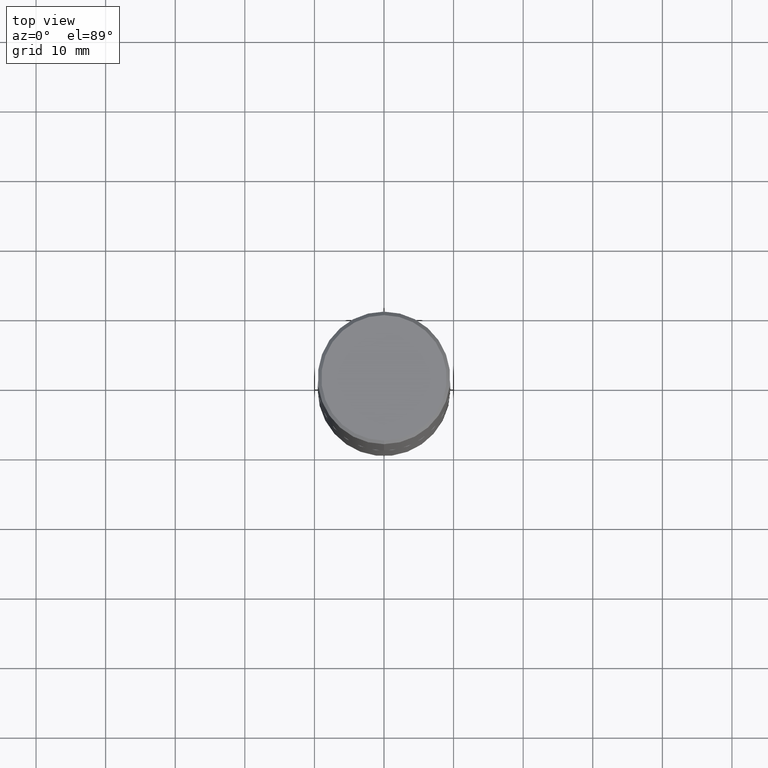
[diagram: clean part render]
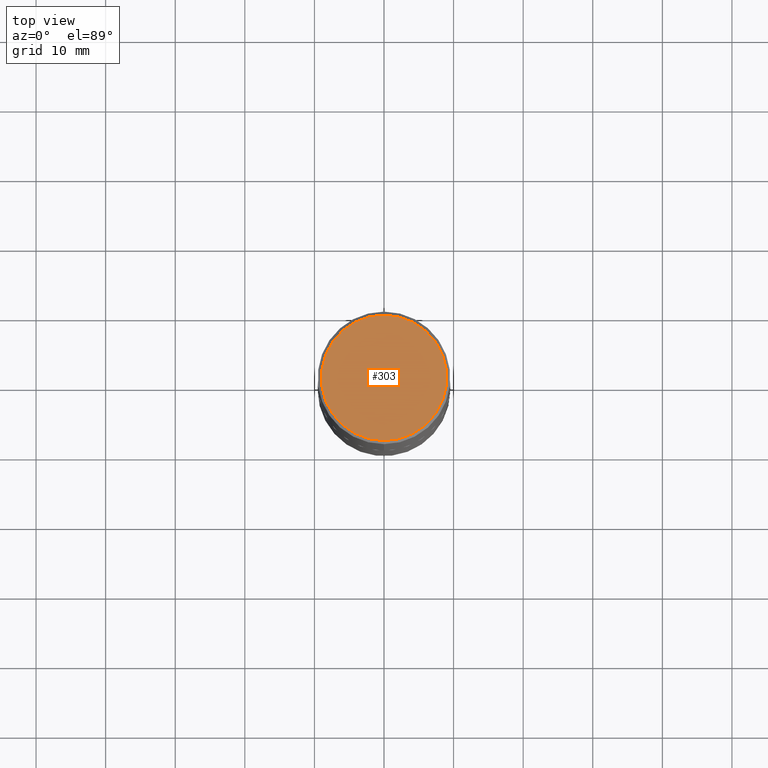
[diagram: same view with one face highlighted and labeled with its STEP entity id]
A machine part, top view. The second image highlights one B-rep face of the part: STEP entity #303.
In plain terms, the highlighted planar face has unit normal (0, -0, -1).
Its self-contained STEP definition (entity closure, byte-faithful):
#22 = DIRECTION ( 'NONE',  ( -2.444599841513017620E-29, 3.492725745712017802E-15, 1.000000000000000000 ) ) ;
#65 = VERTEX_POINT ( 'NONE', #109 ) ;
#80 = DIRECTION ( 'NONE',  ( -6.982962677686265922E-15, -1.000000000000000000, 3.492725745712017407E-15 ) ) ;
#100 = DIRECTION ( 'NONE',  ( -6.982962677686265922E-15, -1.000000000000000000, 3.492725745712017407E-15 ) ) ;
#101 = PLANE ( 'NONE',  #383 ) ;
#109 = CARTESIAN_POINT ( 'NONE',  ( 2.548781377355487507E-15, 0.3549999999999999822, -1.175448187937810043E-15 ) ) ;
#122 = EDGE_LOOP ( 'NONE', ( #232, #257 ) ) ;
#134 = FACE_OUTER_BOUND ( 'NONE', #122, .T. ) ;
#140 = DIRECTION ( 'NONE',  ( 2.444599841513016780E-29, -3.492725745712018196E-15, -1.000000000000000000 ) ) ;
#187 = AXIS2_PLACEMENT_3D ( 'NONE', #241, #336, #80 ) ;
#219 = CIRCLE ( 'NONE', #259, 0.3549999999999999822 ) ;
#232 = ORIENTED_EDGE ( 'NONE', *, *, #287, .T. ) ;
#241 = CARTESIAN_POINT ( 'NONE',  ( -1.576020116281570290E-45, 2.251741140787182714E-31, 6.446945178995578068E-17 ) ) ;
#257 = ORIENTED_EDGE ( 'NONE', *, *, #378, .T. ) ;
#259 = AXIS2_PLACEMENT_3D ( 'NONE', #405, #22, #100 ) ;
#271 = CARTESIAN_POINT ( 'NONE',  ( 2.478951750578624209E-15, 0.3549999999999999822, -1.207682913832788389E-15 ) ) ;
#287 = EDGE_CURVE ( 'NONE', #65, #397, #384, .T. ) ;
#303 = ADVANCED_FACE ( 'NONE', ( #134 ), #101, .F. ) ;
#336 = DIRECTION ( 'NONE',  ( -2.444599841513017620E-29, 3.492725745712017802E-15, 1.000000000000000000 ) ) ;
#338 = DIRECTION ( 'NONE',  ( 6.982962677686265922E-15, 1.000000000000000000, -3.492725745712018196E-15 ) ) ;
#378 = EDGE_CURVE ( 'NONE', #397, #65, #219, .T. ) ;
#383 = AXIS2_PLACEMENT_3D ( 'NONE', #271, #140, #338 ) ;
#384 = CIRCLE ( 'NONE', #187, 0.3549999999999999822 ) ;
#397 = VERTEX_POINT ( 'NONE', #417 ) ;
#405 = CARTESIAN_POINT ( 'NONE',  ( -1.576020116281570290E-45, 2.251741140787182714E-31, 6.446945178995578068E-17 ) ) ;
#417 = CARTESIAN_POINT ( 'NONE',  ( -2.504081769186608610E-15, -0.3549999999999999822, 1.304387091517721851E-15 ) ) ;